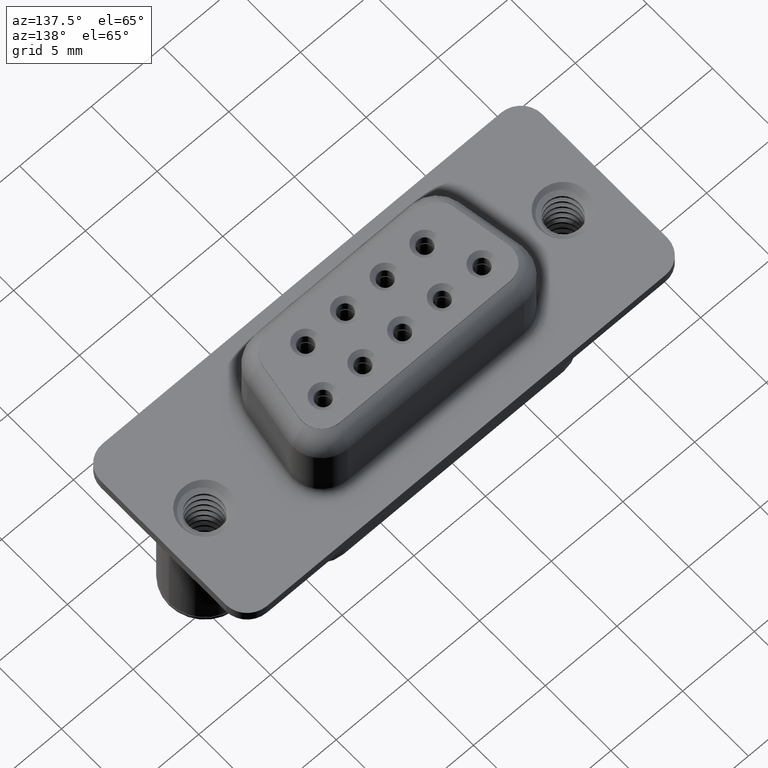
[diagram: clean part render]
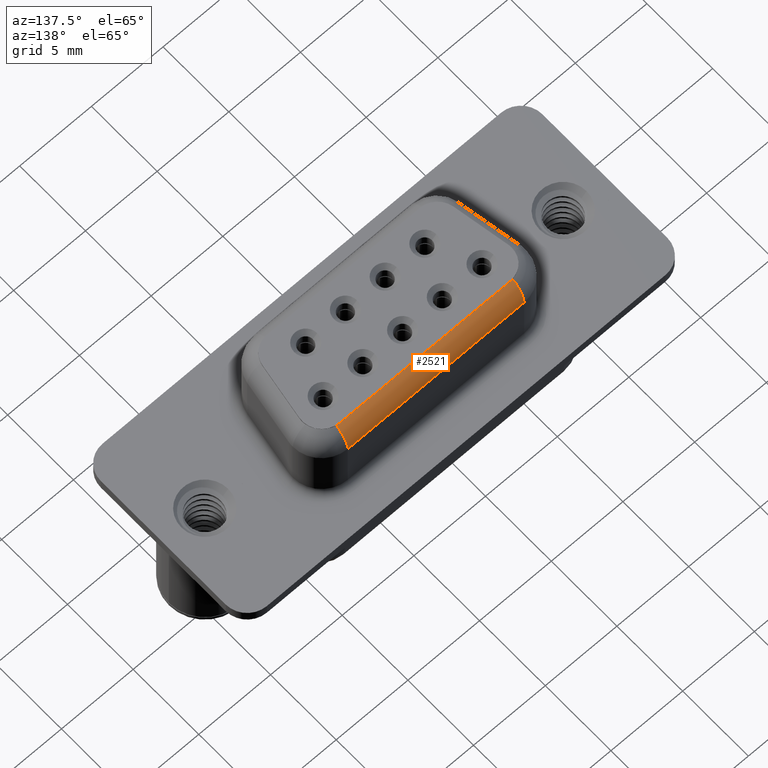
[diagram: same view with one face highlighted and labeled with its STEP entity id]
A machine part, auxiliary view. The second image highlights one B-rep face of the part: STEP entity #2521.
In plain terms, the highlighted cylindrical surface (edge-blend (fillet) strip) has radius 1.75 mm, axis along (-1, 0, 0).
Its self-contained STEP definition (entity closure, byte-faithful):
#55 = CARTESIAN_POINT ( 'NONE',  ( 18.58382843890590053, 3.095015570034537866, 6.153854768208852022 ) ) ;
#162 = B_SPLINE_CURVE_WITH_KNOTS ( 'NONE', 3,
 ( #14621, #738, #13399, #10721 ),
 .UNSPECIFIED., .F., .F.,
 ( 4, 4 ),
 ( 0.0000000000000000000, 0.0002007484702493279448 ),
 .UNSPECIFIED. ) ;
#424 = DIRECTION ( 'NONE',  ( 1.000000000000000000, 0.0000000000000000000, 0.0000000000000000000 ) ) ;
#429 = FACE_OUTER_BOUND ( 'NONE', #11212, .T. ) ;
#738 = CARTESIAN_POINT ( 'NONE',  ( 6.416171561094113684, 3.095015570034539198, 6.153854768208852022 ) ) ;
#1030 = CARTESIAN_POINT ( 'NONE',  ( 6.350000000000005862, 3.949999999999997069, 4.650000000000000355 ) ) ;
#1217 = VERTEX_POINT ( 'NONE', #7581 ) ;
#1283 = CARTESIAN_POINT ( 'NONE',  ( 18.51716658051241282, 3.099999999999995204, 6.150833101980365036 ) ) ;
#1319 = VERTEX_POINT ( 'NONE', #5834 ) ;
#2091 = VERTEX_POINT ( 'NONE', #15782 ) ;
#2397 = CARTESIAN_POINT ( 'NONE',  ( 18.65000000000000924, 2.199999999999997957, 4.650000000000000355 ) ) ;
#2411 = LINE ( 'NONE', #1030, #9307 ) ;
#2477 = CIRCLE ( 'NONE', #11597, 1.749999999999999778 ) ;
#2521 = ADVANCED_FACE ( 'NONE', ( #429 ), #8158, .T. ) ;
#3288 = CIRCLE ( 'NONE', #5658, 1.749999999999999778 ) ;
#3418 = ORIENTED_EDGE ( 'NONE', *, *, #10498, .T. ) ;
#3784 = DIRECTION ( 'NONE',  ( -1.000000000000000000, 0.0000000000000000000, 0.0000000000000000000 ) ) ;
#4241 = DIRECTION ( 'NONE',  ( -1.000000000000000000, 0.0000000000000000000, 0.0000000000000000000 ) ) ;
#4312 = ORIENTED_EDGE ( 'NONE', *, *, #14864, .T. ) ;
#4521 = EDGE_CURVE ( 'NONE', #7339, #1319, #162, .T. ) ;
#5658 = AXIS2_PLACEMENT_3D ( 'NONE', #2397, #3784, #8452 ) ;
#5834 = CARTESIAN_POINT ( 'NONE',  ( 6.550000000000007816, 3.099999999999996980, 6.150833101980364148 ) ) ;
#5991 = VECTOR ( 'NONE', #15720, 1000.000000000000000 ) ;
#6083 = DIRECTION ( 'NONE',  ( 1.000000000000000000, -0.0000000000000000000, -0.0000000000000000000 ) ) ;
#6291 = DIRECTION ( 'NONE',  ( 0.0000000000000000000, 0.0000000000000000000, -1.000000000000000000 ) ) ;
#6854 = CARTESIAN_POINT ( 'NONE',  ( 17.96232477523702542, 2.199999999999997069, 4.650000000000000355 ) ) ;
#7064 = LINE ( 'NONE', #10535, #5991 ) ;
#7132 = ORIENTED_EDGE ( 'NONE', *, *, #7136, .T. ) ;
#7136 = EDGE_CURVE ( 'NONE', #1319, #1217, #7064, .T. ) ;
#7339 = VERTEX_POINT ( 'NONE', #12318 ) ;
#7581 = CARTESIAN_POINT ( 'NONE',  ( 18.45000000000000639, 3.099999999999995204, 6.150833101980364148 ) ) ;
#7872 = CARTESIAN_POINT ( 'NONE',  ( 6.350000000000005862, 3.949999999999997069, 4.650000000000000355 ) ) ;
#8158 = CYLINDRICAL_SURFACE ( 'NONE', #8277, 1.749999999999999778 ) ;
#8277 = AXIS2_PLACEMENT_3D ( 'NONE', #6854, #4241, #9238 ) ;
#8452 = DIRECTION ( 'NONE',  ( 0.0000000000000000000, 0.0000000000000000000, 1.000000000000000000 ) ) ;
#9238 = DIRECTION ( 'NONE',  ( 0.0000000000000000000, 0.0000000000000000000, 1.000000000000000000 ) ) ;
#9307 = VECTOR ( 'NONE', #6083, 1000.000000000000000 ) ;
#10498 = EDGE_CURVE ( 'NONE', #1217, #2091, #14142, .T. ) ;
#10535 = CARTESIAN_POINT ( 'NONE',  ( 17.96232477523702542, 3.099999999999996980, 6.150833101980364148 ) ) ;
#10721 = CARTESIAN_POINT ( 'NONE',  ( 6.550000000000007816, 3.099999999999996980, 6.150833101980364148 ) ) ;
#11212 = EDGE_LOOP ( 'NONE', ( #7132, #3418, #4312, #12206, #12047, #12035 ) ) ;
#11285 = VERTEX_POINT ( 'NONE', #12789 ) ;
#11548 = CARTESIAN_POINT ( 'NONE',  ( 6.350000000000005862, 2.199999999999997957, 4.650000000000000355 ) ) ;
#11597 = AXIS2_PLACEMENT_3D ( 'NONE', #11548, #424, #6291 ) ;
#11739 = EDGE_CURVE ( 'NONE', #15600, #7339, #2477, .T. ) ;
#12035 = ORIENTED_EDGE ( 'NONE', *, *, #4521, .T. ) ;
#12047 = ORIENTED_EDGE ( 'NONE', *, *, #11739, .T. ) ;
#12206 = ORIENTED_EDGE ( 'NONE', *, *, #14354, .F. ) ;
#12318 = CARTESIAN_POINT ( 'NONE',  ( 6.350000000000004974, 3.085102992281864687, 6.159666417806823446 ) ) ;
#12789 = CARTESIAN_POINT ( 'NONE',  ( 18.65000000000000924, 3.949999999999998845, 4.650000000000000355 ) ) ;
#13399 = CARTESIAN_POINT ( 'NONE',  ( 6.482833419487600501, 3.099999999999996980, 6.150833101980364148 ) ) ;
#13546 = CARTESIAN_POINT ( 'NONE',  ( 18.45000000000000639, 3.099999999999995204, 6.150833101980364148 ) ) ;
#14142 = B_SPLINE_CURVE_WITH_KNOTS ( 'NONE', 3,
 ( #13546, #1283, #55, #15005 ),
 .UNSPECIFIED., .F., .F.,
 ( 4, 4 ),
 ( 0.0000000000000000000, 0.0002007484702493269962 ),
 .UNSPECIFIED. ) ;
#14354 = EDGE_CURVE ( 'NONE', #15600, #11285, #2411, .T. ) ;
#14621 = CARTESIAN_POINT ( 'NONE',  ( 6.350000000000004974, 3.085102992281864687, 6.159666417806823446 ) ) ;
#14864 = EDGE_CURVE ( 'NONE', #2091, #11285, #3288, .T. ) ;
#15005 = CARTESIAN_POINT ( 'NONE',  ( 18.65000000000000924, 3.085102992281863798, 6.159666417806824334 ) ) ;
#15600 = VERTEX_POINT ( 'NONE', #7872 ) ;
#15720 = DIRECTION ( 'NONE',  ( 1.000000000000000000, -0.0000000000000000000, -0.0000000000000000000 ) ) ;
#15782 = CARTESIAN_POINT ( 'NONE',  ( 18.65000000000000924, 3.085102992281863798, 6.159666417806824334 ) ) ;